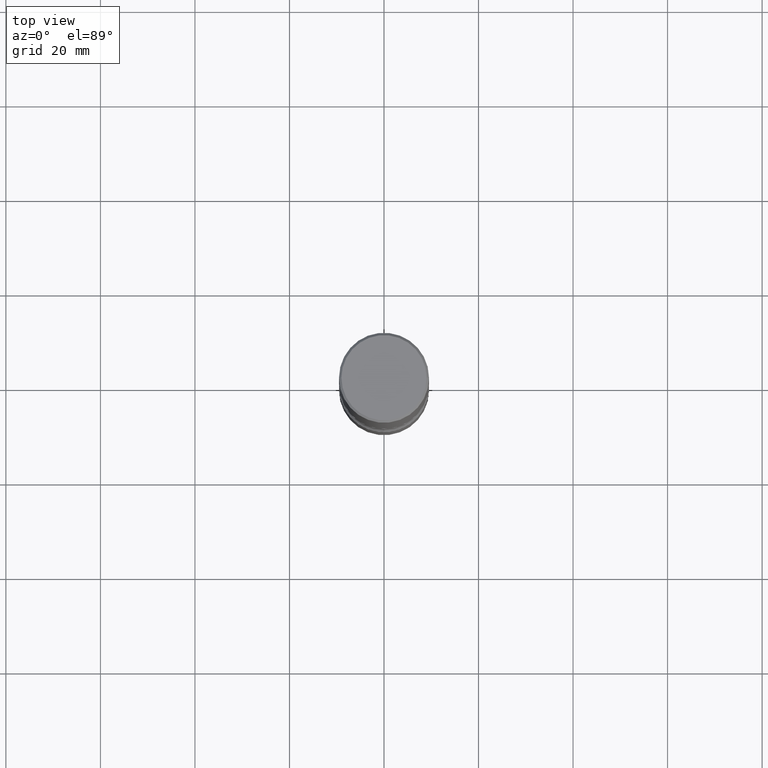
[diagram: clean part render]
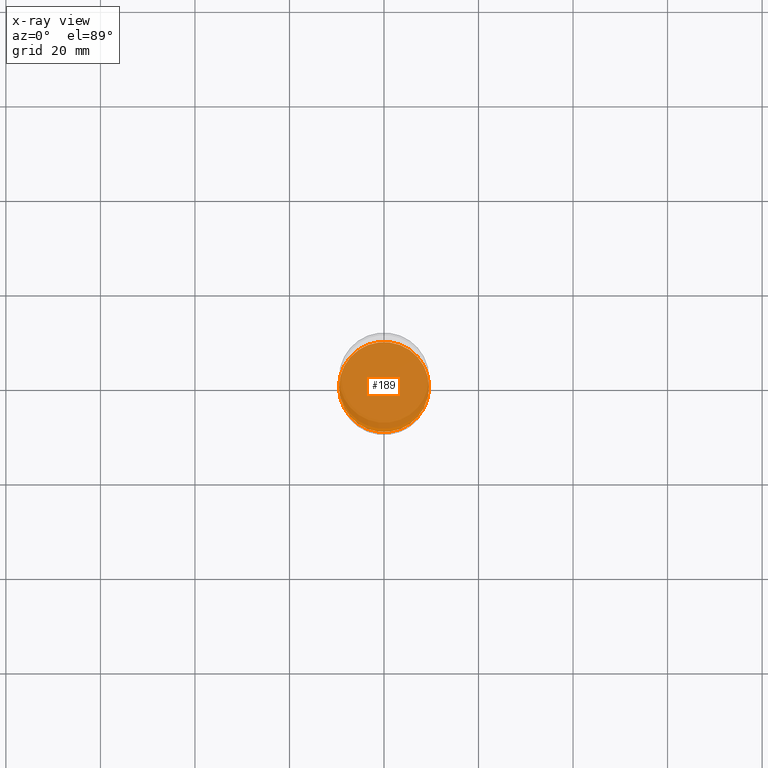
[diagram: x-ray — body ghosted, one internal face saturated and labeled with its STEP entity id]
A machine part, top view, then the same camera in x-ray: the body is ghosted and one INTERNAL B-rep face — a face not visible from any outside direction — is saturated and labeled: STEP entity #189.
In plain terms, the highlighted planar face has unit normal (0, -0, -1).
Its self-contained STEP definition (entity closure, byte-faithful):
#81 = FACE_OUTER_BOUND ( 'NONE', #94, .T. ) ;
#92 = VERTEX_POINT ( 'NONE', #471 ) ;
#94 = EDGE_LOOP ( 'NONE', ( #183, #198 ) ) ;
#95 = DIRECTION ( 'NONE',  ( -1.000000000000000000, 6.982962677686265922E-15, -4.876176775795935793E-29 ) ) ;
#136 = DIRECTION ( 'NONE',  ( 1.000000000000000000, -6.982962677686265922E-15, 0.000000000000000000 ) ) ;
#150 = EDGE_CURVE ( 'NONE', #393, #92, #323, .T. ) ;
#166 = EDGE_CURVE ( 'NONE', #92, #393, #473, .T. ) ;
#181 = DIRECTION ( 'NONE',  ( 2.438088387897960049E-29, -3.491481338843145188E-15, -1.000000000000000000 ) ) ;
#183 = ORIENTED_EDGE ( 'NONE', *, *, #166, .T. ) ;
#189 = ADVANCED_FACE ( 'NONE', ( #81 ), #258, .F. ) ;
#198 = ORIENTED_EDGE ( 'NONE', *, *, #150, .T. ) ;
#202 = AXIS2_PLACEMENT_3D ( 'NONE', #210, #223, #136 ) ;
#210 = CARTESIAN_POINT ( 'NONE',  ( 1.100460962783311244E-28, -1.571166602479415374E-14, -4.499999999999999112 ) ) ;
#220 = CARTESIAN_POINT ( 'NONE',  ( 1.100460962783311244E-28, -1.571166602479415374E-14, -4.499999999999999112 ) ) ;
#223 = DIRECTION ( 'NONE',  ( -2.445468806185136597E-29, 3.491481338843145583E-15, 1.000000000000000000 ) ) ;
#258 = PLANE ( 'NONE',  #390 ) ;
#295 = DIRECTION ( 'NONE',  ( 1.000000000000000000, -6.982962677686265922E-15, 0.000000000000000000 ) ) ;
#323 = CIRCLE ( 'NONE', #202, 0.3750000000000003886 ) ;
#390 = AXIS2_PLACEMENT_3D ( 'NONE', #220, #181, #95 ) ;
#393 = VERTEX_POINT ( 'NONE', #534 ) ;
#435 = DIRECTION ( 'NONE',  ( -2.445468806185136597E-29, 3.491481338843145583E-15, 1.000000000000000000 ) ) ;
#471 = CARTESIAN_POINT ( 'NONE',  ( 0.3750000000000003886, -1.833027702892650691E-14, -4.499999999999999112 ) ) ;
#473 = CIRCLE ( 'NONE', #509, 0.3750000000000003886 ) ;
#509 = AXIS2_PLACEMENT_3D ( 'NONE', #554, #435, #295 ) ;
#534 = CARTESIAN_POINT ( 'NONE',  ( -0.3750000000000003886, -1.556099732966084100E-14, -4.499999999999999112 ) ) ;
#554 = CARTESIAN_POINT ( 'NONE',  ( 1.100460962783311244E-28, -1.571166602479415374E-14, -4.499999999999999112 ) ) ;